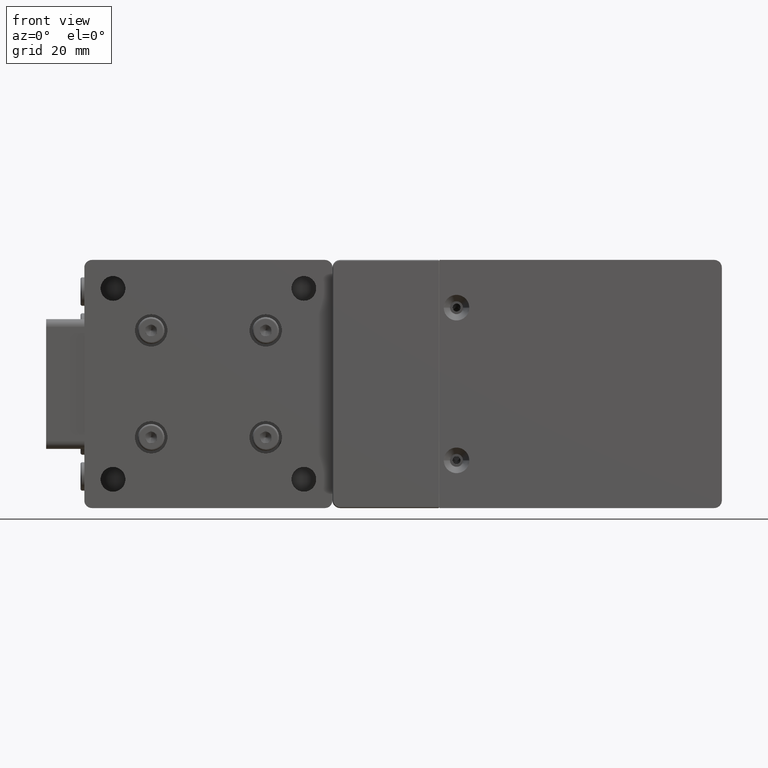
[diagram: clean part render]
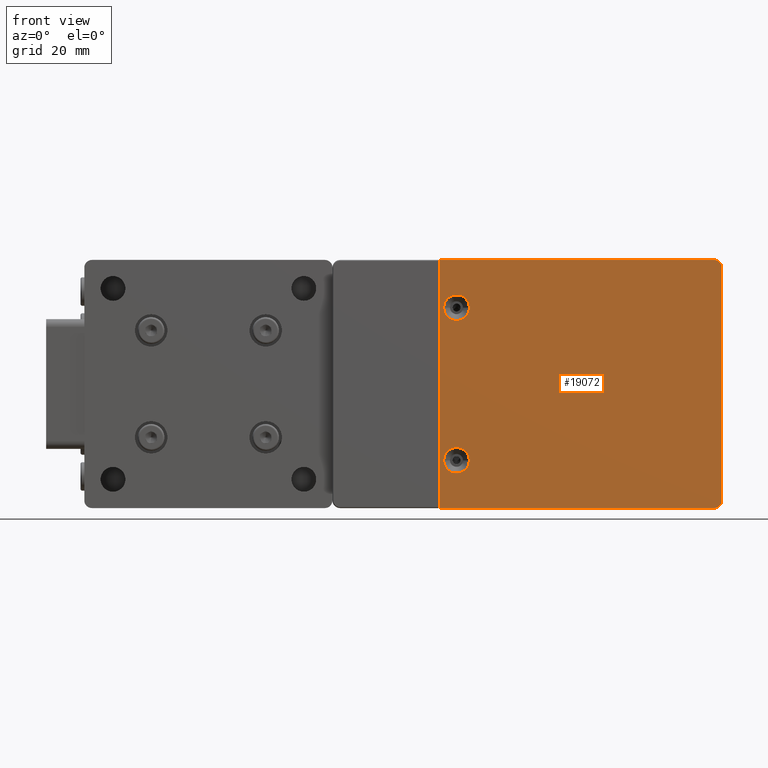
[diagram: same view with one face highlighted and labeled with its STEP entity id]
A machine part, front view. The second image highlights one B-rep face of the part: STEP entity #19072.
In plain terms, the highlighted planar face has unit normal (0, -1, 0).
Its self-contained STEP definition (entity closure, byte-faithful):
#78 = VECTOR ( 'NONE', #40073, 1000.000000000000000 ) ;
#1700 = VERTEX_POINT ( 'NONE', #9804 ) ;
#1869 = DIRECTION ( 'NONE',  ( 1.000000000000000000, 0.000000000000000000, 0.000000000000000000 ) ) ;
#2041 = CARTESIAN_POINT ( 'NONE',  ( -90.15206144933929977, 0.7416784770247970560, 32.50000000000000000 ) ) ;
#2076 = AXIS2_PLACEMENT_3D ( 'NONE', #14557, #22654, #23198 ) ;
#2850 = PLANE ( 'NONE',  #33964 ) ;
#3171 = EDGE_CURVE ( 'NONE', #39212, #43704, #34826, .T. ) ;
#3741 = AXIS2_PLACEMENT_3D ( 'NONE', #53445, #11413, #10598 ) ;
#4743 = VERTEX_POINT ( 'NONE', #49430 ) ;
#4964 = EDGE_CURVE ( 'NONE', #49504, #53304, #21294, .T. ) ;
#6001 = EDGE_CURVE ( 'NONE', #19157, #4743, #49340, .T. ) ;
#6055 = CARTESIAN_POINT ( 'NONE',  ( -18.15206144933934596, 0.7416784770247970560, -30.50000000000000000 ) ) ;
#6424 = CIRCLE ( 'NONE', #3741, 3.360000000000002096 ) ;
#6502 = LINE ( 'NONE', #2041, #49210 ) ;
#7687 = DIRECTION ( 'NONE',  ( -1.024821253500143939E-16, 0.000000000000000000, 1.000000000000000000 ) ) ;
#8086 = CARTESIAN_POINT ( 'NONE',  ( -90.15206144933929977, 0.7416784770247970560, 32.50000000000000000 ) ) ;
#9015 = AXIS2_PLACEMENT_3D ( 'NONE', #40637, #48705, #27836 ) ;
#9590 = CARTESIAN_POINT ( 'NONE',  ( -85.65206144933939925, 0.7416784770247970560, 20.00000000000000000 ) ) ;
#9804 = CARTESIAN_POINT ( 'NONE',  ( -89.01206144933938447, 0.7416784770247970560, -20.00000000000000000 ) ) ;
#10086 = FACE_OUTER_BOUND ( 'NONE', #37294, .T. ) ;
#10135 = EDGE_CURVE ( 'NONE', #1700, #13839, #42976, .T. ) ;
#10598 = DIRECTION ( 'NONE',  ( 1.000000000000000000, 0.000000000000000000, 0.000000000000000000 ) ) ;
#10920 = VECTOR ( 'NONE', #41974, 1000.000000000000000 ) ;
#11413 = DIRECTION ( 'NONE',  ( 0.000000000000000000, -1.000000000000000000, 0.000000000000000000 ) ) ;
#13839 = VERTEX_POINT ( 'NONE', #20709 ) ;
#14539 = FACE_BOUND ( 'NONE', #49805, .T. ) ;
#14557 = CARTESIAN_POINT ( 'NONE',  ( -85.65206144933939925, 0.7416784770247970560, -20.00000000000000000 ) ) ;
#14797 = CARTESIAN_POINT ( 'NONE',  ( -89.01206144933938447, 0.7416784770247970560, 20.00000000000000000 ) ) ;
#14825 = CARTESIAN_POINT ( 'NONE',  ( -90.15206144933929977, 0.7416784770247970560, 32.50000000000000000 ) ) ;
#14871 = DIRECTION ( 'NONE',  ( 1.000000000000000000, 0.000000000000000000, 0.000000000000000000 ) ) ;
#15754 = CARTESIAN_POINT ( 'NONE',  ( -16.15206144933934951, 0.7416784770247970560, 32.50000000000000000 ) ) ;
#16019 = EDGE_CURVE ( 'NONE', #53304, #49504, #26207, .T. ) ;
#19072 = ADVANCED_FACE ( 'NONE', ( #14539, #19809, #10086 ), #2850, .T. ) ;
#19157 = VERTEX_POINT ( 'NONE', #25377 ) ;
#19442 = EDGE_LOOP ( 'NONE', ( #46010, #22803 ) ) ;
#19809 = FACE_BOUND ( 'NONE', #19442, .T. ) ;
#20520 = ORIENTED_EDGE ( 'NONE', *, *, #6001, .T. ) ;
#20709 = CARTESIAN_POINT ( 'NONE',  ( -82.29206144933930034, 0.7416784770247970560, -20.00000000000000000 ) ) ;
#20827 = EDGE_CURVE ( 'NONE', #13839, #1700, #6424, .T. ) ;
#21143 = ORIENTED_EDGE ( 'NONE', *, *, #34701, .T. ) ;
#21294 = CIRCLE ( 'NONE', #42642, 3.360000000000002096 ) ;
#21490 = EDGE_CURVE ( 'NONE', #44159, #45520, #29172, .T. ) ;
#21873 = CARTESIAN_POINT ( 'NONE',  ( -16.15206144933934951, 0.7416784770247970560, 30.50000000000000000 ) ) ;
#22469 = ORIENTED_EDGE ( 'NONE', *, *, #10135, .F. ) ;
#22654 = DIRECTION ( 'NONE',  ( 0.000000000000000000, -1.000000000000000000, 0.000000000000000000 ) ) ;
#22665 = VECTOR ( 'NONE', #7687, 1000.000000000000000 ) ;
#22803 = ORIENTED_EDGE ( 'NONE', *, *, #16019, .F. ) ;
#23106 = CARTESIAN_POINT ( 'NONE',  ( -90.15206144933929977, 0.7416784770247970560, -32.50000000000000000 ) ) ;
#23198 = DIRECTION ( 'NONE',  ( 1.000000000000000000, 0.000000000000000000, 0.000000000000000000 ) ) ;
#25377 = CARTESIAN_POINT ( 'NONE',  ( -18.15206144933934596, 0.7416784770247970560, -32.50000000000000000 ) ) ;
#26039 = EDGE_CURVE ( 'NONE', #45520, #19157, #49226, .T. ) ;
#26207 = CIRCLE ( 'NONE', #38641, 3.360000000000002096 ) ;
#27368 = CARTESIAN_POINT ( 'NONE',  ( -90.15206144933929977, 0.7416784770247970560, -32.50000000000000000 ) ) ;
#27664 = ORIENTED_EDGE ( 'NONE', *, *, #3171, .T. ) ;
#27836 = DIRECTION ( 'NONE',  ( 1.000000000000000000, 0.000000000000000000, 0.000000000000000000 ) ) ;
#28323 = CARTESIAN_POINT ( 'NONE',  ( -85.65206144933939925, 0.7416784770247970560, 20.00000000000000000 ) ) ;
#28412 = ORIENTED_EDGE ( 'NONE', *, *, #26039, .T. ) ;
#29172 = LINE ( 'NONE', #46136, #10920 ) ;
#30121 = ORIENTED_EDGE ( 'NONE', *, *, #21490, .T. ) ;
#30330 = ORIENTED_EDGE ( 'NONE', *, *, #20827, .F. ) ;
#31571 = DIRECTION ( 'NONE',  ( -1.000000000000000000, 0.000000000000000000, 1.110223024625155924E-16 ) ) ;
#33678 = EDGE_CURVE ( 'NONE', #43704, #44159, #6502, .T. ) ;
#33964 = AXIS2_PLACEMENT_3D ( 'NONE', #14825, #52946, #52389 ) ;
#34701 = EDGE_CURVE ( 'NONE', #4743, #39212, #45525, .T. ) ;
#34826 = CIRCLE ( 'NONE', #9015, 2.000000000000001776 ) ;
#36379 = DIRECTION ( 'NONE',  ( 0.000000000000000000, -1.000000000000000000, 0.000000000000000000 ) ) ;
#36941 = DIRECTION ( 'NONE',  ( 1.000000000000000000, 0.000000000000000000, 0.000000000000000000 ) ) ;
#37294 = EDGE_LOOP ( 'NONE', ( #28412, #20520, #21143, #27664, #43014, #30121 ) ) ;
#37563 = CARTESIAN_POINT ( 'NONE',  ( -82.29206144933930034, 0.7416784770247970560, 20.00000000000000000 ) ) ;
#38641 = AXIS2_PLACEMENT_3D ( 'NONE', #28323, #36379, #36941 ) ;
#38710 = AXIS2_PLACEMENT_3D ( 'NONE', #6055, #48347, #1869 ) ;
#39212 = VERTEX_POINT ( 'NONE', #21873 ) ;
#40073 = DIRECTION ( 'NONE',  ( 1.000000000000000000, 0.000000000000000000, -1.110223024625155924E-16 ) ) ;
#40637 = CARTESIAN_POINT ( 'NONE',  ( -18.15206144933934596, 0.7416784770247970560, 30.50000000000000000 ) ) ;
#41974 = DIRECTION ( 'NONE',  ( 1.144237745221966051E-17, 0.000000000000000000, -1.000000000000000000 ) ) ;
#42642 = AXIS2_PLACEMENT_3D ( 'NONE', #9590, #43560, #14871 ) ;
#42976 = CIRCLE ( 'NONE', #2076, 3.360000000000002096 ) ;
#43014 = ORIENTED_EDGE ( 'NONE', *, *, #33678, .T. ) ;
#43560 = DIRECTION ( 'NONE',  ( 0.000000000000000000, -1.000000000000000000, 0.000000000000000000 ) ) ;
#43704 = VERTEX_POINT ( 'NONE', #53524 ) ;
#44159 = VERTEX_POINT ( 'NONE', #8086 ) ;
#45520 = VERTEX_POINT ( 'NONE', #27368 ) ;
#45525 = LINE ( 'NONE', #15754, #22665 ) ;
#46010 = ORIENTED_EDGE ( 'NONE', *, *, #4964, .F. ) ;
#46136 = CARTESIAN_POINT ( 'NONE',  ( -90.15206144933929977, 0.7416784770247970560, 32.50000000000000000 ) ) ;
#48347 = DIRECTION ( 'NONE',  ( 0.000000000000000000, -1.000000000000000000, 0.000000000000000000 ) ) ;
#48705 = DIRECTION ( 'NONE',  ( 0.000000000000000000, -1.000000000000000000, 0.000000000000000000 ) ) ;
#49210 = VECTOR ( 'NONE', #31571, 1000.000000000000000 ) ;
#49226 = LINE ( 'NONE', #23106, #78 ) ;
#49340 = CIRCLE ( 'NONE', #38710, 2.000000000000001776 ) ;
#49430 = CARTESIAN_POINT ( 'NONE',  ( -16.15206144933934951, 0.7416784770247970560, -30.50000000000000000 ) ) ;
#49504 = VERTEX_POINT ( 'NONE', #37563 ) ;
#49805 = EDGE_LOOP ( 'NONE', ( #30330, #22469 ) ) ;
#52389 = DIRECTION ( 'NONE',  ( 0.000000000000000000, 0.000000000000000000, -1.000000000000000000 ) ) ;
#52946 = DIRECTION ( 'NONE',  ( 0.000000000000000000, -1.000000000000000000, 0.000000000000000000 ) ) ;
#53304 = VERTEX_POINT ( 'NONE', #14797 ) ;
#53445 = CARTESIAN_POINT ( 'NONE',  ( -85.65206144933939925, 0.7416784770247970560, -20.00000000000000000 ) ) ;
#53524 = CARTESIAN_POINT ( 'NONE',  ( -18.15206144933934596, 0.7416784770247970560, 32.50000000000000000 ) ) ;